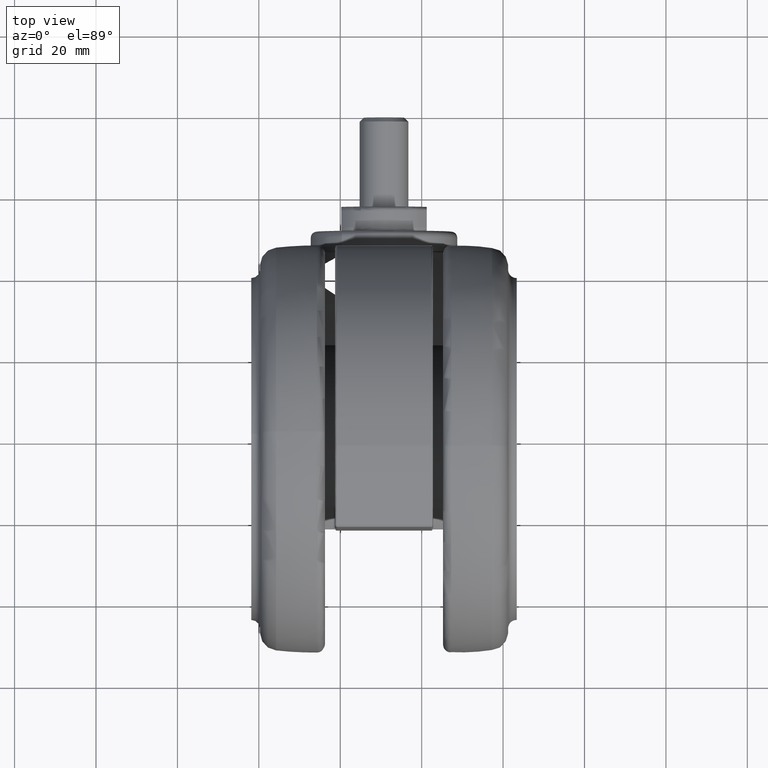
[diagram: clean part render]
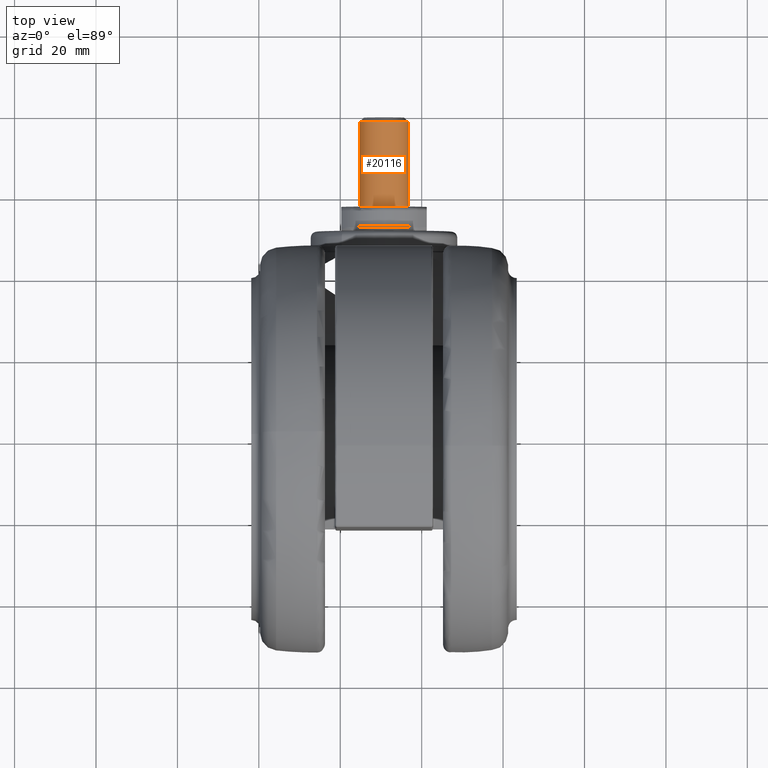
[diagram: same view with one face highlighted and labeled with its STEP entity id]
A machine part, top view. The second image highlights one B-rep face of the part: STEP entity #20116.
In plain terms, the highlighted cylindrical surface (edge-blend (fillet) strip) has radius 6 mm, axis along (0, 1, 0).
Its self-contained STEP definition (entity closure, byte-faithful):
#3865 = VERTEX_POINT ( 'NONE', #20292 ) ;
#5408 = ORIENTED_EDGE ( 'NONE', *, *, #29754, .F. ) ;
#6716 = LINE ( 'NONE', #14398, #64422 ) ;
#8792 = DIRECTION ( 'NONE',  ( 1.000000000000000000, 1.063787649795562900E-014, 8.310387710030920500E-032 ) ) ;
#9064 = VERTEX_POINT ( 'NONE', #72892 ) ;
#14398 = CARTESIAN_POINT ( 'NONE',  ( 59.99976103317421700, -34.99999999999937500, -26.60000000000001200 ) ) ;
#15072 = CARTESIAN_POINT ( 'NONE',  ( 59.99976103317421700, -34.99999999999926100, -38.60000000000000900 ) ) ;
#15519 = DIRECTION ( 'NONE',  ( -1.000000000000000000, -1.063787649795562900E-014, -8.310387710030920500E-032 ) ) ;
#18160 = VECTOR ( 'NONE', #8792, 1000.000000000000000 ) ;
#18571 = CARTESIAN_POINT ( 'NONE',  ( 80.99976103317422400, -34.99999999999914700, -26.60000000000001200 ) ) ;
#19568 = DIRECTION ( 'NONE',  ( -1.000000000000000000, -1.063787649795562900E-014, -8.310387710030920500E-032 ) ) ;
#19828 = VERTEX_POINT ( 'NONE', #18571 ) ;
#20116 = ADVANCED_FACE ( 'NONE', ( #44710 ), #42854, .T. ) ;
#20292 = CARTESIAN_POINT ( 'NONE',  ( 59.99976103317421700, -34.99999999999926100, -26.60000000000001200 ) ) ;
#29754 = EDGE_CURVE ( 'NONE', #3865, #43457, #33682, .T. ) ;
#33682 = CIRCLE ( 'NONE', #52873, 5.999999999999998200 ) ;
#34669 = EDGE_CURVE ( 'NONE', #43457, #9064, #65674, .T. ) ;
#37274 = AXIS2_PLACEMENT_3D ( 'NONE', #63031, #68523, #75025 ) ;
#42854 = CYLINDRICAL_SURFACE ( 'NONE', #37274, 5.999999999999998200 ) ;
#43203 = ORIENTED_EDGE ( 'NONE', *, *, #46829, .T. ) ;
#43457 = VERTEX_POINT ( 'NONE', #15072 ) ;
#44710 = FACE_OUTER_BOUND ( 'NONE', #74600, .T. ) ;
#46829 = EDGE_CURVE ( 'NONE', #19828, #9064, #49089, .T. ) ;
#49089 = CIRCLE ( 'NONE', #71369, 5.999999999999998200 ) ;
#51129 = CARTESIAN_POINT ( 'NONE',  ( 59.99976103317421700, -34.99999999999937500, -32.60000000000000900 ) ) ;
#52873 = AXIS2_PLACEMENT_3D ( 'NONE', #51129, #15519, #57128 ) ;
#55219 = CARTESIAN_POINT ( 'NONE',  ( 80.99976103317422400, -34.99999999999914700, -32.60000000000000900 ) ) ;
#57128 = DIRECTION ( 'NONE',  ( 0.0000000000000000000, 0.0000000000000000000, 1.000000000000000000 ) ) ;
#61206 = DIRECTION ( 'NONE',  ( 0.0000000000000000000, 0.0000000000000000000, 1.000000000000000000 ) ) ;
#62075 = CARTESIAN_POINT ( 'NONE',  ( 59.99976103317421700, -34.99999999999937500, -38.60000000000000900 ) ) ;
#63031 = CARTESIAN_POINT ( 'NONE',  ( 59.99976103317421700, -34.99999999999937500, -32.60000000000000900 ) ) ;
#64422 = VECTOR ( 'NONE', #68024, 1000.000000000000000 ) ;
#65674 = LINE ( 'NONE', #62075, #18160 ) ;
#68024 = DIRECTION ( 'NONE',  ( 1.000000000000000000, 1.063787649795562900E-014, 8.310387710030920500E-032 ) ) ;
#68058 = EDGE_CURVE ( 'NONE', #3865, #19828, #6716, .T. ) ;
#68523 = DIRECTION ( 'NONE',  ( 1.000000000000000000, 1.063787649795562900E-014, 8.310387710030920500E-032 ) ) ;
#70955 = ORIENTED_EDGE ( 'NONE', *, *, #68058, .T. ) ;
#71079 = ORIENTED_EDGE ( 'NONE', *, *, #34669, .F. ) ;
#71369 = AXIS2_PLACEMENT_3D ( 'NONE', #55219, #19568, #61206 ) ;
#72892 = CARTESIAN_POINT ( 'NONE',  ( 80.99976103317422400, -34.99999999999914700, -38.60000000000000900 ) ) ;
#74600 = EDGE_LOOP ( 'NONE', ( #5408, #70955, #43203, #71079 ) ) ;
#75025 = DIRECTION ( 'NONE',  ( 0.0000000000000000000, 0.0000000000000000000, -1.000000000000000000 ) ) ;